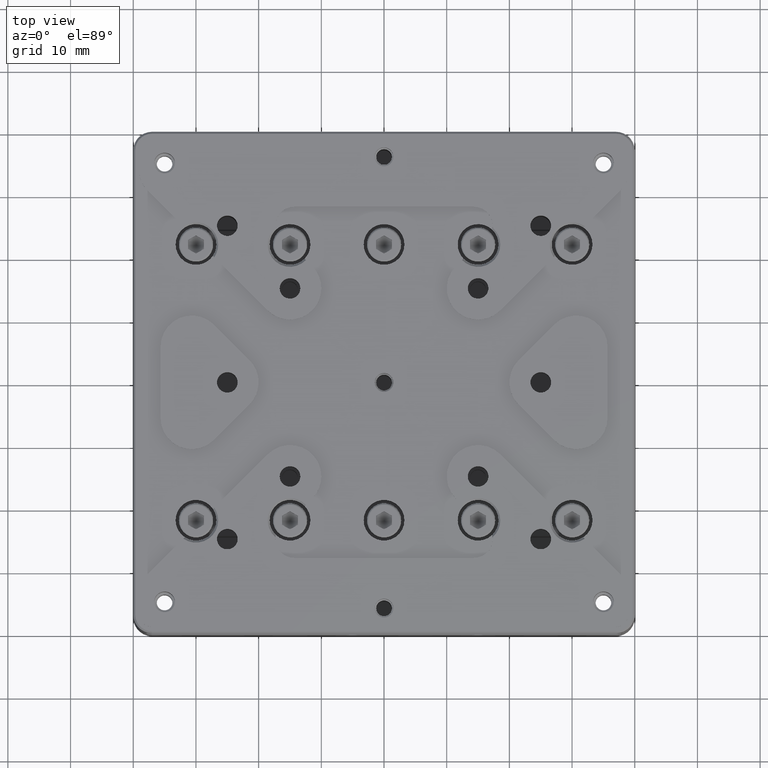
[diagram: clean part render]
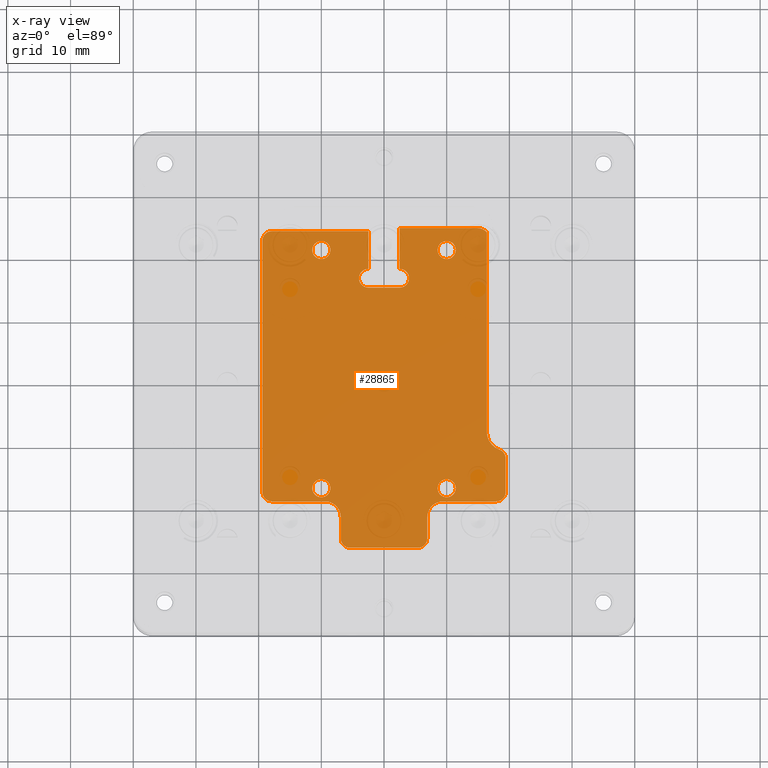
[diagram: x-ray — body ghosted, one internal face saturated and labeled with its STEP entity id]
A machine part, top view, then the same camera in x-ray: the body is ghosted and one INTERNAL B-rep face — a face not visible from any outside direction — is saturated and labeled: STEP entity #28865.
In plain terms, the highlighted planar face has unit normal (0, 0, -1).
Its self-contained STEP definition (entity closure, byte-faithful):
#83 = EDGE_LOOP ( 'NONE', ( #9753, #24460 ) ) ;
#112 = AXIS2_PLACEMENT_3D ( 'NONE', #7027, #22879, #15688 ) ;
#175 = VERTEX_POINT ( 'NONE', #533 ) ;
#254 = CARTESIAN_POINT ( 'NONE',  ( -19.39999999934469699, 22.99999999325499900, -8.799999998700519299 ) ) ;
#289 = CIRCLE ( 'NONE', #4062, 1.449999999999999956 ) ;
#355 = CARTESIAN_POINT ( 'NONE',  ( -6.900000001847139686, -21.09999999339999732, -8.800000002674510213 ) ) ;
#409 = EDGE_CURVE ( 'NONE', #17771, #20918, #5936, .T. ) ;
#433 = DIRECTION ( 'NONE',  ( 0.000000000000000000, 0.000000000000000000, -1.000000000000000000 ) ) ;
#533 = CARTESIAN_POINT ( 'NONE',  ( -11.44999999999999929, -16.50000000000000000, -8.800000000000000711 ) ) ;
#644 = DIRECTION ( 'NONE',  ( -1.000000000000000000, 0.000000000000000000, 0.000000000000000000 ) ) ;
#767 = ORIENTED_EDGE ( 'NONE', *, *, #4068, .F. ) ;
#865 = VERTEX_POINT ( 'NONE', #11012 ) ;
#946 = VECTOR ( 'NONE', #2501, 1000.000000000000000 ) ;
#972 = VERTEX_POINT ( 'NONE', #18797 ) ;
#988 = EDGE_CURVE ( 'NONE', #23369, #3427, #14381, .T. ) ;
#989 = AXIS2_PLACEMENT_3D ( 'NONE', #14719, #5612, #27946 ) ;
#1282 = ORIENTED_EDGE ( 'NONE', *, *, #20254, .F. ) ;
#1395 = DIRECTION ( 'NONE',  ( 1.000000000000000000, 0.000000000000000000, 0.000000000000000000 ) ) ;
#1400 = ORIENTED_EDGE ( 'NONE', *, *, #13709, .T. ) ;
#1457 = EDGE_CURVE ( 'NONE', #20676, #24026, #20222, .T. ) ;
#1576 = EDGE_CURVE ( 'NONE', #15436, #972, #28972, .T. ) ;
#1748 = CARTESIAN_POINT ( 'NONE',  ( -17.90000000079999865, -18.59999999928500003, -8.799999999293419251 ) ) ;
#1945 = DIRECTION ( 'NONE',  ( 0.000000000000000000, 0.000000000000000000, 1.000000000000000000 ) ) ;
#1987 = VERTEX_POINT ( 'NONE', #1748 ) ;
#2150 = DIRECTION ( 'NONE',  ( 0.000000000000000000, 0.000000000000000000, 1.000000000000000000 ) ) ;
#2187 = DIRECTION ( 'NONE',  ( 0.000000000000000000, 0.000000000000000000, -1.000000000000000000 ) ) ;
#2233 = VERTEX_POINT ( 'NONE', #14210 ) ;
#2463 = ORIENTED_EDGE ( 'NONE', *, *, #8476, .F. ) ;
#2484 = CARTESIAN_POINT ( 'NONE',  ( 16.40000000000000213, 0.000000000000000000, -8.800000000000000711 ) ) ;
#2501 = DIRECTION ( 'NONE',  ( -1.000000000000000000, 0.000000000000000000, 0.000000000000000000 ) ) ;
#2515 = CARTESIAN_POINT ( 'NONE',  ( -10.00000000000000000, -16.50000000000000000, -8.800000000000000711 ) ) ;
#2607 = ORIENTED_EDGE ( 'NONE', *, *, #17936, .F. ) ;
#2669 = DIRECTION ( 'NONE',  ( -1.000000000000000000, 0.000000000000000000, 0.000000000000000000 ) ) ;
#2673 = DIRECTION ( 'NONE',  ( 0.000000000000000000, 0.000000000000000000, 1.000000000000000000 ) ) ;
#3164 = CIRCLE ( 'NONE', #12059, 2.000000000000000000 ) ;
#3197 = ORIENTED_EDGE ( 'NONE', *, *, #13886, .F. ) ;
#3423 = CARTESIAN_POINT ( 'NONE',  ( 16.40000000000000213, 24.32287565553230024, -8.800000000000000711 ) ) ;
#3427 = VERTEX_POINT ( 'NONE', #254 ) ;
#3430 = EDGE_CURVE ( 'NONE', #23636, #21845, #15691, .T. ) ;
#3661 = CARTESIAN_POINT ( 'NONE',  ( -9.400000000000000355, -18.60000000002734666, -8.800000000027331737 ) ) ;
#3673 = CIRCLE ( 'NONE', #17740, 1.449999999999999956 ) ;
#3894 = DIRECTION ( 'NONE',  ( 0.000000000000000000, 0.000000000000000000, 1.000000000000000000 ) ) ;
#4062 = AXIS2_PLACEMENT_3D ( 'NONE', #5652, #15055, #24007 ) ;
#4068 = EDGE_CURVE ( 'NONE', #972, #11608, #5222, .T. ) ;
#4188 = CARTESIAN_POINT ( 'NONE',  ( -10.00000000000000000, -16.50000000000000000, -8.800000000000000711 ) ) ;
#4212 = EDGE_CURVE ( 'NONE', #28728, #10503, #12545, .T. ) ;
#4229 = FACE_BOUND ( 'NONE', #28150, .T. ) ;
#4298 = VERTEX_POINT ( 'NONE', #6680 ) ;
#4350 = VECTOR ( 'NONE', #17616, 1000.000000000000000 ) ;
#4491 = LINE ( 'NONE', #13751, #16888 ) ;
#4619 = ORIENTED_EDGE ( 'NONE', *, *, #20569, .F. ) ;
#4704 = AXIS2_PLACEMENT_3D ( 'NONE', #27775, #433, #9400 ) ;
#4715 = DIRECTION ( 'NONE',  ( 0.000000000000000000, 0.000000000000000000, 1.000000000000000000 ) ) ;
#4741 = VECTOR ( 'NONE', #22893, 1000.000000000000000 ) ;
#5140 = CARTESIAN_POINT ( 'NONE',  ( -2.500000000000000000, 18.50000000000000000, -8.800000000000000711 ) ) ;
#5222 = LINE ( 'NONE', #14322, #10150 ) ;
#5276 = CARTESIAN_POINT ( 'NONE',  ( -5.400000000000000355, -25.99999999926725280, -8.800000000007910828 ) ) ;
#5410 = ORIENTED_EDGE ( 'NONE', *, *, #1576, .F. ) ;
#5481 = ORIENTED_EDGE ( 'NONE', *, *, #19985, .F. ) ;
#5551 = CARTESIAN_POINT ( 'NONE',  ( -2.500000000000000000, 15.50000000000000000, -8.800000000000000711 ) ) ;
#5612 = DIRECTION ( 'NONE',  ( 0.000000000000000000, 0.000000000000000000, 1.000000000000000000 ) ) ;
#5646 = AXIS2_PLACEMENT_3D ( 'NONE', #4188, #3894, #28153 ) ;
#5652 = CARTESIAN_POINT ( 'NONE',  ( 10.00000000000000000, 21.50000000000000000, -8.800000000000000711 ) ) ;
#5712 = ORIENTED_EDGE ( 'NONE', *, *, #4212, .F. ) ;
#5829 = EDGE_CURVE ( 'NONE', #15677, #15491, #17813, .T. ) ;
#5882 = CARTESIAN_POINT ( 'NONE',  ( -10.00000000000000000, 21.50000000000000000, -8.800000000000000711 ) ) ;
#5892 = VERTEX_POINT ( 'NONE', #10253 ) ;
#5936 = CIRCLE ( 'NONE', #24673, 1.449999999999999956 ) ;
#6233 = DIRECTION ( 'NONE',  ( 0.000000000000000000, 0.000000000000000000, -1.000000000000000000 ) ) ;
#6241 = EDGE_CURVE ( 'NONE', #12438, #10650, #22877, .T. ) ;
#6504 = DIRECTION ( 'NONE',  ( -1.000000000000000000, 0.000000000000000000, 0.000000000000000000 ) ) ;
#6594 = ORIENTED_EDGE ( 'NONE', *, *, #18889, .F. ) ;
#6680 = CARTESIAN_POINT ( 'NONE',  ( -8.550000000000000711, -16.50000000000000000, -8.800000000000000711 ) ) ;
#6735 = EDGE_CURVE ( 'NONE', #16295, #27968, #3164, .T. ) ;
#6748 = DIRECTION ( 'NONE',  ( -1.000000000000000000, 0.000000000000000000, 0.000000000000000000 ) ) ;
#7027 = CARTESIAN_POINT ( 'NONE',  ( -2.500000000000000000, 17.00000000000000000, -8.800000000000000711 ) ) ;
#7030 = DIRECTION ( 'NONE',  ( 0.000000000000000000, -1.000000000000000000, 0.000000000000000000 ) ) ;
#7093 = DIRECTION ( 'NONE',  ( 0.000000000000000000, 0.000000000000000000, 1.000000000000000000 ) ) ;
#7097 = CARTESIAN_POINT ( 'NONE',  ( 10.00000000000000000, -16.50000000000000000, -8.800000000000000711 ) ) ;
#7446 = CARTESIAN_POINT ( 'NONE',  ( 0.000000000000000000, -25.99999999857000077, -8.800000000000000711 ) ) ;
#8032 = AXIS2_PLACEMENT_3D ( 'NONE', #2515, #1945, #6504 ) ;
#8210 = DIRECTION ( 'NONE',  ( 0.000000000000000000, 0.000000000000000000, 1.000000000000000000 ) ) ;
#8476 = EDGE_CURVE ( 'NONE', #20918, #17771, #25300, .T. ) ;
#8501 = CIRCLE ( 'NONE', #8032, 1.449999999999999956 ) ;
#8533 = ORIENTED_EDGE ( 'NONE', *, *, #16238, .F. ) ;
#8534 = EDGE_LOOP ( 'NONE', ( #22308, #1282, #18852, #5712, #25692, #767, #5410, #11227, #23448, #12464, #15109, #9920, #9249, #20761, #24200, #12229, #14924, #23545, #10748, #6594, #23148, #8533, #18126, #3197, #18118, #1400 ) ) ;
#8742 = CIRCLE ( 'NONE', #25618, 1.499999999962454922 ) ;
#8793 = EDGE_CURVE ( 'NONE', #25896, #21309, #9829, .T. ) ;
#8896 = CIRCLE ( 'NONE', #22477, 1.499999998684779179 ) ;
#8968 = EDGE_CURVE ( 'NONE', #3427, #15436, #10796, .T. ) ;
#9249 = ORIENTED_EDGE ( 'NONE', *, *, #20345, .F. ) ;
#9400 = DIRECTION ( 'NONE',  ( -1.000000000000000000, 0.000000000000000000, 0.000000000000000000 ) ) ;
#9552 = EDGE_LOOP ( 'NONE', ( #2463, #13141 ) ) ;
#9610 = AXIS2_PLACEMENT_3D ( 'NONE', #24378, #2187, #6748 ) ;
#9681 = AXIS2_PLACEMENT_3D ( 'NONE', #13656, #13227, #15708 ) ;
#9753 = ORIENTED_EDGE ( 'NONE', *, *, #17692, .F. ) ;
#9829 = CIRCLE ( 'NONE', #22520, 3.000000000076215922 ) ;
#9893 = DIRECTION ( 'NONE',  ( 0.000000000000000000, 0.000000000000000000, -1.000000000000000000 ) ) ;
#9920 = ORIENTED_EDGE ( 'NONE', *, *, #6241, .F. ) ;
#9970 = CARTESIAN_POINT ( 'NONE',  ( -19.40000000000000213, 2.949999999999999734, -8.800000000000000711 ) ) ;
#10150 = VECTOR ( 'NONE', #23280, 1000.000000000000000 ) ;
#10253 = CARTESIAN_POINT ( 'NONE',  ( 4.000000000000000000, 17.00000000000000000, -8.800000000000000711 ) ) ;
#10378 = EDGE_CURVE ( 'NONE', #10650, #1987, #22616, .T. ) ;
#10417 = CARTESIAN_POINT ( 'NONE',  ( 2.500000000000000000, 25.00000000000000000, -8.800000000000000711 ) ) ;
#10503 = VERTEX_POINT ( 'NONE', #16448 ) ;
#10512 = AXIS2_PLACEMENT_3D ( 'NONE', #26405, #29053, #19786 ) ;
#10650 = VERTEX_POINT ( 'NONE', #3661 ) ;
#10748 = ORIENTED_EDGE ( 'NONE', *, *, #5829, .F. ) ;
#10796 = CIRCLE ( 'NONE', #4704, 1.499999998689417691 ) ;
#10967 = CARTESIAN_POINT ( 'NONE',  ( -17.90000000079999865, 24.49999999854444965, -8.799999998643670551 ) ) ;
#11012 = CARTESIAN_POINT ( 'NONE',  ( 5.400000000797500199, -25.99999999874874845, -8.799999999199929590 ) ) ;
#11067 = DIRECTION ( 'NONE',  ( 0.000000000000000000, 0.000000000000000000, -1.000000000000000000 ) ) ;
#11110 = FACE_BOUND ( 'NONE', #83, .T. ) ;
#11227 = ORIENTED_EDGE ( 'NONE', *, *, #8968, .F. ) ;
#11267 = CARTESIAN_POINT ( 'NONE',  ( -9.400000000000000355, -21.10000000000000142, -8.800000000054659210 ) ) ;
#11475 = CARTESIAN_POINT ( 'NONE',  ( 10.00000000000000000, -16.50000000000000000, -8.800000000000000711 ) ) ;
#11608 = VERTEX_POINT ( 'NONE', #5140 ) ;
#11785 = VECTOR ( 'NONE', #17769, 1000.000000000000000 ) ;
#11900 = VERTEX_POINT ( 'NONE', #10417 ) ;
#12059 = AXIS2_PLACEMENT_3D ( 'NONE', #14169, #9893, #644 ) ;
#12229 = ORIENTED_EDGE ( 'NONE', *, *, #28463, .F. ) ;
#12438 = VERTEX_POINT ( 'NONE', #355 ) ;
#12464 = ORIENTED_EDGE ( 'NONE', *, *, #15028, .F. ) ;
#12545 = LINE ( 'NONE', #24154, #25164 ) ;
#13111 = VECTOR ( 'NONE', #7030, 1000.000000000000000 ) ;
#13141 = ORIENTED_EDGE ( 'NONE', *, *, #409, .F. ) ;
#13166 = EDGE_CURVE ( 'NONE', #11608, #28728, #28765, .T. ) ;
#13227 = DIRECTION ( 'NONE',  ( 0.000000000000000000, 0.000000000000000000, -1.000000000000000000 ) ) ;
#13318 = CARTESIAN_POINT ( 'NONE',  ( 9.400000000000000355, -18.59999999925770098, -8.800000000054659210 ) ) ;
#13352 = EDGE_LOOP ( 'NONE', ( #2607, #14166 ) ) ;
#13395 = DIRECTION ( 'NONE',  ( -1.000000000000000000, 0.000000000000000000, 0.000000000000000000 ) ) ;
#13648 = CIRCLE ( 'NONE', #17406, 1.500000000000000000 ) ;
#13656 = CARTESIAN_POINT ( 'NONE',  ( -17.89999999999999858, -17.10000000000000142, -8.799999998586828909 ) ) ;
#13709 = EDGE_CURVE ( 'NONE', #16295, #11900, #17768, .T. ) ;
#13751 = CARTESIAN_POINT ( 'NONE',  ( 19.40000000000000213, -14.42132034355999970, -8.800000000000000711 ) ) ;
#13852 = DIRECTION ( 'NONE',  ( 0.000000000000000000, 0.000000000000000000, 1.000000000000000000 ) ) ;
#13886 = EDGE_CURVE ( 'NONE', #27968, #25896, #27171, .T. ) ;
#14166 = ORIENTED_EDGE ( 'NONE', *, *, #25838, .F. ) ;
#14169 = CARTESIAN_POINT ( 'NONE',  ( 14.90000000000000036, 23.00000000000000000, -8.800000000000000711 ) ) ;
#14210 = CARTESIAN_POINT ( 'NONE',  ( 8.550000000000000711, 21.50000000000000000, -8.800000000000000711 ) ) ;
#14322 = CARTESIAN_POINT ( 'NONE',  ( -2.500000000000000000, 0.000000000000000000, -8.800000000000000711 ) ) ;
#14354 = CIRCLE ( 'NONE', #28978, 1.499999999953613994 ) ;
#14381 = LINE ( 'NONE', #9970, #18551 ) ;
#14525 = CARTESIAN_POINT ( 'NONE',  ( 18.40000000000589964, -10.32842712483740044, -8.799999999973769249 ) ) ;
#14610 = DIRECTION ( 'NONE',  ( 0.000000000000000000, 0.000000000000000000, -1.000000000000000000 ) ) ;
#14623 = CARTESIAN_POINT ( 'NONE',  ( 19.40000000003309921, -11.74264068711999975, -8.800000000006150458 ) ) ;
#14719 = CARTESIAN_POINT ( 'NONE',  ( -10.00000000000000000, 21.50000000000000000, -8.800000000000000711 ) ) ;
#14924 = ORIENTED_EDGE ( 'NONE', *, *, #3430, .F. ) ;
#14961 = CARTESIAN_POINT ( 'NONE',  ( 6.900000000027329605, -21.10000000000000142, -8.800000000027331737 ) ) ;
#14994 = CARTESIAN_POINT ( 'NONE',  ( 8.550000000000000711, -16.50000000000000000, -8.800000000000000711 ) ) ;
#15028 = EDGE_CURVE ( 'NONE', #1987, #23369, #15336, .T. ) ;
#15055 = DIRECTION ( 'NONE',  ( 0.000000000000000000, 0.000000000000000000, 1.000000000000000000 ) ) ;
#15109 = ORIENTED_EDGE ( 'NONE', *, *, #10378, .F. ) ;
#15238 = FACE_OUTER_BOUND ( 'NONE', #8534, .T. ) ;
#15296 = CARTESIAN_POINT ( 'NONE',  ( 0.000000000000000000, 24.49999999856999722, -8.800000000000000711 ) ) ;
#15336 = CIRCLE ( 'NONE', #9681, 1.499999998514248922 ) ;
#15436 = VERTEX_POINT ( 'NONE', #10967 ) ;
#15491 = VERTEX_POINT ( 'NONE', #13318 ) ;
#15588 = CARTESIAN_POINT ( 'NONE',  ( 19.40000000000000213, -7.500000000000000000, -8.799999999967619502 ) ) ;
#15677 = VERTEX_POINT ( 'NONE', #16975 ) ;
#15688 = DIRECTION ( 'NONE',  ( 1.000000000000000000, 0.000000000000000000, 0.000000000000000000 ) ) ;
#15691 = LINE ( 'NONE', #22450, #13111 ) ;
#15708 = DIRECTION ( 'NONE',  ( -1.000000000000000000, 0.000000000000000000, 0.000000000000000000 ) ) ;
#15741 = DIRECTION ( 'NONE',  ( -1.000000000000000000, 0.000000000000000000, 0.000000000000000000 ) ) ;
#15967 = DIRECTION ( 'NONE',  ( 1.000000000000000000, 0.000000000000000000, 0.000000000000000000 ) ) ;
#16045 = DIRECTION ( 'NONE',  ( -1.000000000000000000, 0.000000000000000000, 0.000000000000000000 ) ) ;
#16062 = CARTESIAN_POINT ( 'NONE',  ( 2.500000000000000000, 17.00000000000000000, -8.800000000000000711 ) ) ;
#16152 = EDGE_CURVE ( 'NONE', #24818, #21528, #14354, .T. ) ;
#16238 = EDGE_CURVE ( 'NONE', #21309, #26221, #8742, .T. ) ;
#16247 = CIRCLE ( 'NONE', #28000, 1.500000000000000000 ) ;
#16295 = VERTEX_POINT ( 'NONE', #18388 ) ;
#16448 = CARTESIAN_POINT ( 'NONE',  ( 2.500000000000000000, 15.50000000000000000, -8.800000000000000711 ) ) ;
#16737 = CARTESIAN_POINT ( 'NONE',  ( 6.899999999361999592, -24.49999999325499900, -8.799999999378679050 ) ) ;
#16888 = VECTOR ( 'NONE', #22416, 1000.000000000000000 ) ;
#16975 = CARTESIAN_POINT ( 'NONE',  ( 17.89999999999999858, -18.59999999854210273, -8.799999998700519299 ) ) ;
#17032 = CARTESIAN_POINT ( 'NONE',  ( 2.500000000000000000, 17.00000000000000000, -8.800000000000000711 ) ) ;
#17165 = DIRECTION ( 'NONE',  ( -1.000000000000000000, 0.000000000000000000, 0.000000000000000000 ) ) ;
#17327 = CARTESIAN_POINT ( 'NONE',  ( 10.00000000000000000, 21.50000000000000000, -8.800000000000000711 ) ) ;
#17406 = AXIS2_PLACEMENT_3D ( 'NONE', #16062, #13852, #22809 ) ;
#17517 = DIRECTION ( 'NONE',  ( 0.000000000000000000, 1.000000000000000000, 0.000000000000000000 ) ) ;
#17616 = DIRECTION ( 'NONE',  ( -1.000000000000000000, 0.000000000000000000, 0.000000000000000000 ) ) ;
#17692 = EDGE_CURVE ( 'NONE', #24026, #20676, #3673, .T. ) ;
#17719 = LINE ( 'NONE', #22559, #28589 ) ;
#17740 = AXIS2_PLACEMENT_3D ( 'NONE', #5882, #21292, #24089 ) ;
#17768 = LINE ( 'NONE', #28950, #4350 ) ;
#17769 = DIRECTION ( 'NONE',  ( -1.000000000000000000, 0.000000000000000000, 0.000000000000000000 ) ) ;
#17771 = VERTEX_POINT ( 'NONE', #21592 ) ;
#17813 = LINE ( 'NONE', #26792, #21520 ) ;
#17877 = CARTESIAN_POINT ( 'NONE',  ( 0.000000000000000000, 0.000000000000000000, -8.800000000000000711 ) ) ;
#17936 = EDGE_CURVE ( 'NONE', #2233, #25716, #26668, .T. ) ;
#18007 = DIRECTION ( 'NONE',  ( 0.000000000000000000, 0.000000000000000000, -1.000000000000000000 ) ) ;
#18118 = ORIENTED_EDGE ( 'NONE', *, *, #6735, .F. ) ;
#18126 = ORIENTED_EDGE ( 'NONE', *, *, #8793, .F. ) ;
#18203 = CARTESIAN_POINT ( 'NONE',  ( -19.39999999926219942, -17.10000000000000142, -8.799999999309600085 ) ) ;
#18297 = CIRCLE ( 'NONE', #5646, 1.449999999999999956 ) ;
#18388 = CARTESIAN_POINT ( 'NONE',  ( 14.90000000000000036, 25.00000000000000000, -8.800000000000000711 ) ) ;
#18453 = EDGE_CURVE ( 'NONE', #25669, #11900, #17719, .T. ) ;
#18551 = VECTOR ( 'NONE', #23345, 1000.000000000000000 ) ;
#18566 = CARTESIAN_POINT ( 'NONE',  ( 11.44999999999999929, 21.50000000000000000, -8.800000000000000711 ) ) ;
#18797 = CARTESIAN_POINT ( 'NONE',  ( -2.500000000000000000, 24.49999999856935062, -8.799999999522670535 ) ) ;
#18852 = ORIENTED_EDGE ( 'NONE', *, *, #22046, .F. ) ;
#18889 = EDGE_CURVE ( 'NONE', #20382, #15677, #8896, .T. ) ;
#19473 = CIRCLE ( 'NONE', #9610, 1.499999998646216248 ) ;
#19566 = CARTESIAN_POINT ( 'NONE',  ( 19.39999999934239838, -17.09999999325500042, -8.799999998785779098 ) ) ;
#19786 = DIRECTION ( 'NONE',  ( 1.000000000000000000, 0.000000000000000000, 0.000000000000000000 ) ) ;
#19791 = DIRECTION ( 'NONE',  ( 0.000000000000000000, -1.000000000000000000, 0.000000000000000000 ) ) ;
#19813 = EDGE_CURVE ( 'NONE', #26221, #20382, #4491, .T. ) ;
#19985 = EDGE_CURVE ( 'NONE', #4298, #175, #18297, .T. ) ;
#20080 = VECTOR ( 'NONE', #22054, 1000.000000000000000 ) ;
#20222 = CIRCLE ( 'NONE', #989, 1.449999999999999956 ) ;
#20233 = DIRECTION ( 'NONE',  ( 0.000000000000000000, 0.000000000000000000, 1.000000000000000000 ) ) ;
#20254 = EDGE_CURVE ( 'NONE', #5892, #25669, #13648, .T. ) ;
#20345 = EDGE_CURVE ( 'NONE', #21528, #12438, #21483, .T. ) ;
#20349 = DIRECTION ( 'NONE',  ( 0.000000000000000000, 1.000000000000000000, 0.000000000000000000 ) ) ;
#20382 = VERTEX_POINT ( 'NONE', #19566 ) ;
#20407 = CARTESIAN_POINT ( 'NONE',  ( 0.000000000000000000, -18.59999999999999787, -8.800000000000000711 ) ) ;
#20569 = EDGE_CURVE ( 'NONE', #175, #4298, #8501, .T. ) ;
#20676 = VERTEX_POINT ( 'NONE', #24416 ) ;
#20761 = ORIENTED_EDGE ( 'NONE', *, *, #16152, .F. ) ;
#20918 = VERTEX_POINT ( 'NONE', #14994 ) ;
#21054 = EDGE_CURVE ( 'NONE', #865, #24818, #24528, .T. ) ;
#21058 = DIRECTION ( 'NONE',  ( -1.000000000000000000, 0.000000000000000000, 0.000000000000000000 ) ) ;
#21204 = CARTESIAN_POINT ( 'NONE',  ( -5.400000000000000355, -24.50000000000000000, -8.800000000007910828 ) ) ;
#21292 = DIRECTION ( 'NONE',  ( 0.000000000000000000, 0.000000000000000000, 1.000000000000000000 ) ) ;
#21309 = VERTEX_POINT ( 'NONE', #14525 ) ;
#21483 = LINE ( 'NONE', #26026, #26803 ) ;
#21520 = VECTOR ( 'NONE', #15741, 1000.000000000000000 ) ;
#21528 = VERTEX_POINT ( 'NONE', #24745 ) ;
#21592 = CARTESIAN_POINT ( 'NONE',  ( 11.44999999999999929, -16.50000000000000000, -8.800000000000000711 ) ) ;
#21845 = VERTEX_POINT ( 'NONE', #16737 ) ;
#22046 = EDGE_CURVE ( 'NONE', #10503, #5892, #16247, .T. ) ;
#22054 = DIRECTION ( 'NONE',  ( 1.000000000000000000, 0.000000000000000000, 0.000000000000000000 ) ) ;
#22078 = CARTESIAN_POINT ( 'NONE',  ( 17.89999999999999858, -11.74264068711999975, -8.799999999979918996 ) ) ;
#22298 = AXIS2_PLACEMENT_3D ( 'NONE', #17877, #18007, #19791 ) ;
#22308 = ORIENTED_EDGE ( 'NONE', *, *, #18453, .F. ) ;
#22416 = DIRECTION ( 'NONE',  ( 0.000000000000000000, -1.000000000000000000, 0.000000000000000000 ) ) ;
#22450 = CARTESIAN_POINT ( 'NONE',  ( 6.899999999999999467, 0.000000000000000000, -8.800000000000000711 ) ) ;
#22477 = AXIS2_PLACEMENT_3D ( 'NONE', #28874, #11067, #29018 ) ;
#22520 = AXIS2_PLACEMENT_3D ( 'NONE', #15588, #4715, #27192 ) ;
#22559 = CARTESIAN_POINT ( 'NONE',  ( 2.500000000000000000, 0.000000000000000000, -8.800000000000000711 ) ) ;
#22616 = LINE ( 'NONE', #20407, #946 ) ;
#22809 = DIRECTION ( 'NONE',  ( 1.000000000000000000, 0.000000000000000000, 0.000000000000000000 ) ) ;
#22877 = CIRCLE ( 'NONE', #27594, 2.500000000054569682 ) ;
#22879 = DIRECTION ( 'NONE',  ( 0.000000000000000000, 0.000000000000000000, 1.000000000000000000 ) ) ;
#22893 = DIRECTION ( 'NONE',  ( 0.000000000000000000, -1.000000000000000000, 0.000000000000000000 ) ) ;
#23148 = ORIENTED_EDGE ( 'NONE', *, *, #19813, .F. ) ;
#23280 = DIRECTION ( 'NONE',  ( 0.000000000000000000, -1.000000000000000000, 0.000000000000000000 ) ) ;
#23345 = DIRECTION ( 'NONE',  ( 0.000000000000000000, 1.000000000000000000, 0.000000000000000000 ) ) ;
#23369 = VERTEX_POINT ( 'NONE', #18203 ) ;
#23448 = ORIENTED_EDGE ( 'NONE', *, *, #988, .F. ) ;
#23545 = ORIENTED_EDGE ( 'NONE', *, *, #27560, .F. ) ;
#23636 = VERTEX_POINT ( 'NONE', #14961 ) ;
#23901 = AXIS2_PLACEMENT_3D ( 'NONE', #7097, #2673, #16045 ) ;
#24007 = DIRECTION ( 'NONE',  ( -1.000000000000000000, 0.000000000000000000, 0.000000000000000000 ) ) ;
#24026 = VERTEX_POINT ( 'NONE', #26796 ) ;
#24089 = DIRECTION ( 'NONE',  ( -1.000000000000000000, 0.000000000000000000, 0.000000000000000000 ) ) ;
#24154 = CARTESIAN_POINT ( 'NONE',  ( 0.000000000000000000, 15.50000000000000000, -8.800000000000000711 ) ) ;
#24200 = ORIENTED_EDGE ( 'NONE', *, *, #21054, .F. ) ;
#24378 = CARTESIAN_POINT ( 'NONE',  ( 5.400000000000000355, -24.50000000000000000, -8.799999998757359165 ) ) ;
#24416 = CARTESIAN_POINT ( 'NONE',  ( -8.550000000000000711, 21.50000000000000000, -8.800000000000000711 ) ) ;
#24460 = ORIENTED_EDGE ( 'NONE', *, *, #1457, .F. ) ;
#24528 = LINE ( 'NONE', #7446, #11785 ) ;
#24673 = AXIS2_PLACEMENT_3D ( 'NONE', #11475, #7093, #2669 ) ;
#24745 = CARTESIAN_POINT ( 'NONE',  ( -6.899999999286960062, -24.50000000080000007, -8.800000000007910828 ) ) ;
#24818 = VERTEX_POINT ( 'NONE', #5276 ) ;
#25043 = CARTESIAN_POINT ( 'NONE',  ( 16.39999999997865032, -7.500000000000000000, -8.799999999996050093 ) ) ;
#25072 = CIRCLE ( 'NONE', #10512, 2.500000000054569682 ) ;
#25164 = VECTOR ( 'NONE', #1395, 1000.000000000000000 ) ;
#25237 = AXIS2_PLACEMENT_3D ( 'NONE', #17327, #8210, #17165 ) ;
#25300 = CIRCLE ( 'NONE', #23901, 1.449999999999999956 ) ;
#25618 = AXIS2_PLACEMENT_3D ( 'NONE', #22078, #6233, #13395 ) ;
#25669 = VERTEX_POINT ( 'NONE', #27841 ) ;
#25692 = ORIENTED_EDGE ( 'NONE', *, *, #13166, .F. ) ;
#25716 = VERTEX_POINT ( 'NONE', #18566 ) ;
#25838 = EDGE_CURVE ( 'NONE', #25716, #2233, #289, .T. ) ;
#25896 = VERTEX_POINT ( 'NONE', #25043 ) ;
#26026 = CARTESIAN_POINT ( 'NONE',  ( -6.899999998565999881, 0.000000000000000000, -8.800000000000000711 ) ) ;
#26221 = VERTEX_POINT ( 'NONE', #14623 ) ;
#26405 = CARTESIAN_POINT ( 'NONE',  ( 9.400000000000000355, -21.10000000000000142, -8.800000000054659210 ) ) ;
#26546 = FACE_BOUND ( 'NONE', #13352, .T. ) ;
#26668 = CIRCLE ( 'NONE', #25237, 1.449999999999999956 ) ;
#26710 = PLANE ( 'NONE',  #22298 ) ;
#26792 = CARTESIAN_POINT ( 'NONE',  ( 0.000000000000000000, -18.59999999856999864, -8.800000000000000711 ) ) ;
#26796 = CARTESIAN_POINT ( 'NONE',  ( -11.44999999999999929, 21.50000000000000000, -8.800000000000000711 ) ) ;
#26803 = VECTOR ( 'NONE', #17517, 1000.000000000000000 ) ;
#27171 = LINE ( 'NONE', #2484, #4741 ) ;
#27192 = DIRECTION ( 'NONE',  ( 1.000000000000000000, 0.000000000000000000, 0.000000000000000000 ) ) ;
#27560 = EDGE_CURVE ( 'NONE', #15491, #23636, #25072, .T. ) ;
#27594 = AXIS2_PLACEMENT_3D ( 'NONE', #11267, #20233, #15967 ) ;
#27775 = CARTESIAN_POINT ( 'NONE',  ( -17.89999999999999858, 23.00000000000000000, -8.799999998700519299 ) ) ;
#27841 = CARTESIAN_POINT ( 'NONE',  ( 2.500000000000000000, 18.50000000000000000, -8.800000000000000711 ) ) ;
#27946 = DIRECTION ( 'NONE',  ( -1.000000000000000000, 0.000000000000000000, 0.000000000000000000 ) ) ;
#27968 = VERTEX_POINT ( 'NONE', #3423 ) ;
#28000 = AXIS2_PLACEMENT_3D ( 'NONE', #17032, #2150, #29060 ) ;
#28150 = EDGE_LOOP ( 'NONE', ( #4619, #5481 ) ) ;
#28153 = DIRECTION ( 'NONE',  ( -1.000000000000000000, 0.000000000000000000, 0.000000000000000000 ) ) ;
#28463 = EDGE_CURVE ( 'NONE', #21845, #865, #19473, .T. ) ;
#28589 = VECTOR ( 'NONE', #20349, 1000.000000000000000 ) ;
#28728 = VERTEX_POINT ( 'NONE', #5551 ) ;
#28765 = CIRCLE ( 'NONE', #112, 1.500000000000000000 ) ;
#28865 = ADVANCED_FACE ( 'NONE', ( #15238, #28914, #11110, #4229, #26546 ), #26710, .F. ) ;
#28874 = CARTESIAN_POINT ( 'NONE',  ( 17.89999999999999858, -17.10000000000000142, -8.799999998757359165 ) ) ;
#28914 = FACE_BOUND ( 'NONE', #9552, .T. ) ;
#28950 = CARTESIAN_POINT ( 'NONE',  ( 19.90000000000000213, 25.00000000000000000, -8.800000000000000711 ) ) ;
#28972 = LINE ( 'NONE', #15296, #20080 ) ;
#28978 = AXIS2_PLACEMENT_3D ( 'NONE', #21204, #14610, #21058 ) ;
#29018 = DIRECTION ( 'NONE',  ( -1.000000000000000000, 0.000000000000000000, 0.000000000000000000 ) ) ;
#29053 = DIRECTION ( 'NONE',  ( 0.000000000000000000, 0.000000000000000000, 1.000000000000000000 ) ) ;
#29060 = DIRECTION ( 'NONE',  ( 1.000000000000000000, 0.000000000000000000, 0.000000000000000000 ) ) ;